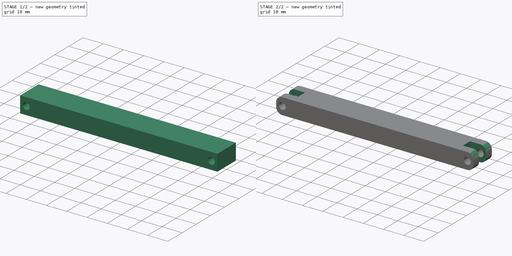
[diagram: build sequence overview — one tinted view per stage of 2, left to right]
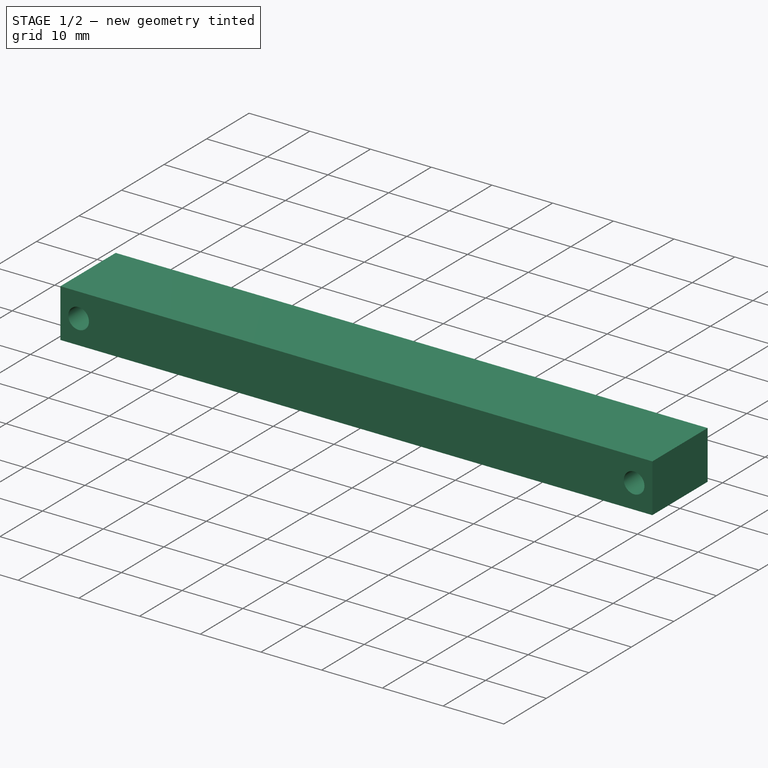
[diagram: stage 1 of 2 — iso view after this stage's code; geometry added in this stage tinted green]
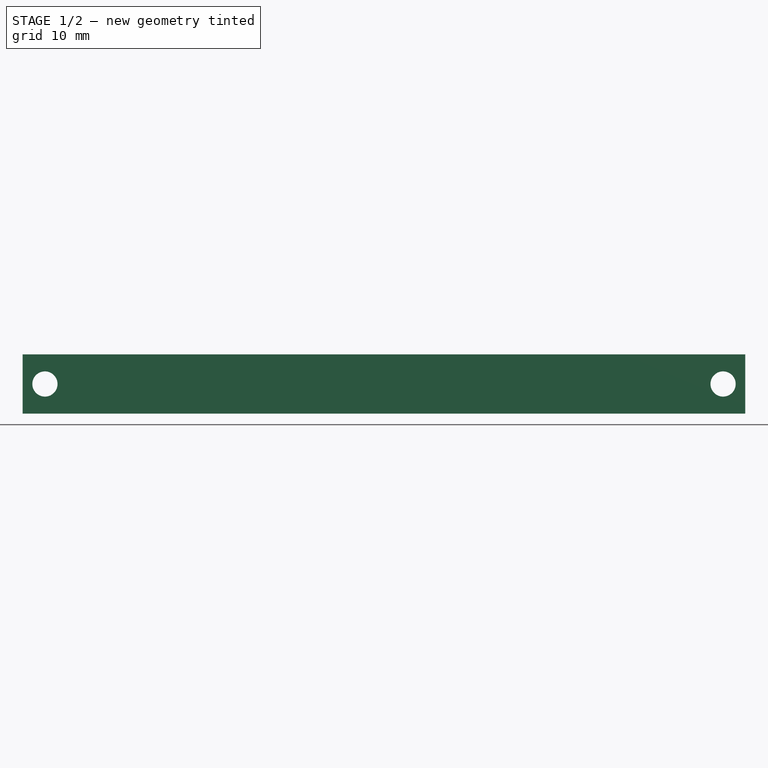
[diagram: stage 1 of 2 — front view after this stage's code; geometry added in this stage tinted green]
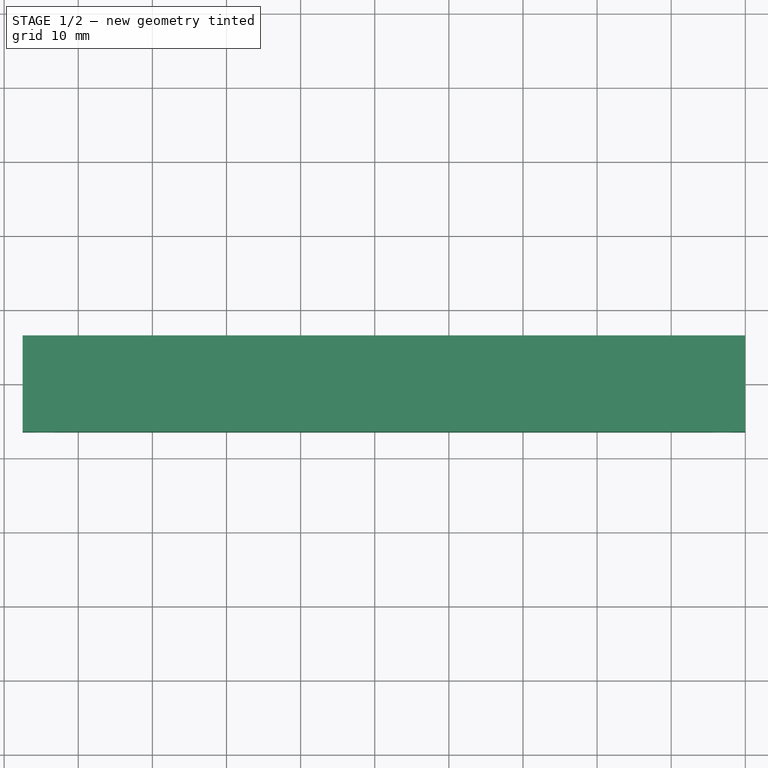
[diagram: stage 1 of 2 — top view after this stage's code; geometry added in this stage tinted green]
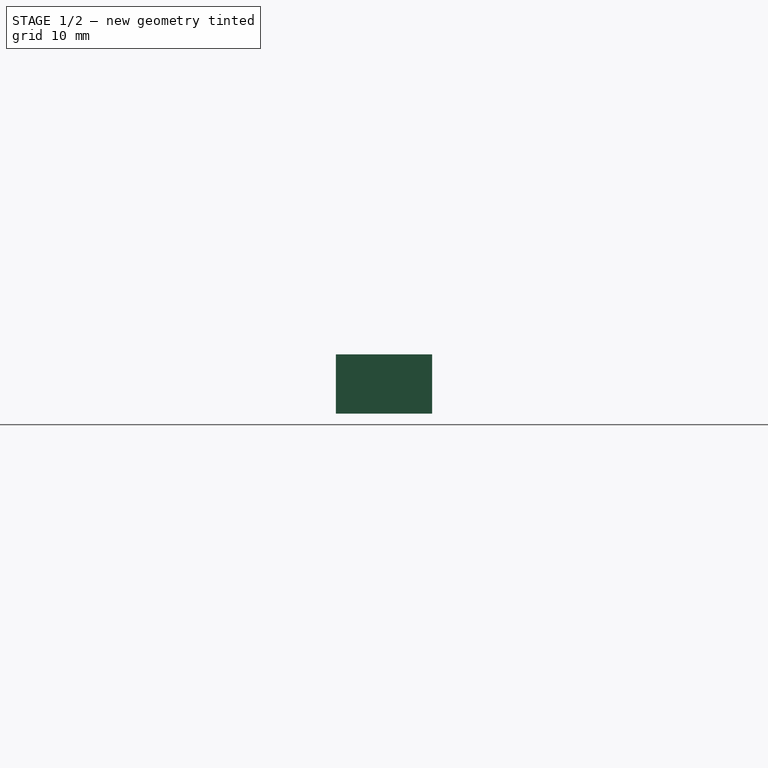
[diagram: stage 1 of 2 — right view after this stage's code; geometry added in this stage tinted green]
FCSTD DOCUMENT  (FreeCAD 0.21R33694 (Git))
Label: calfLinkageRod
License: All rights reserved
LicenseURL: http://en.wikipedia.org/wiki/All_rights_reserved
objects: Sketcher::SketchObject×3, PartDesign::Pocket×2, PartDesign::Pad×1, PartDesign::Fillet×1, PartDesign::Body×1
note: 12 computed .brp shape members not serialized (recipe doc carries the construction recipe); baked Part::Feature solids carry a one-line shape summary decoded from their .brp

FEATURE [Sketcher::SketchObject] Sketch
  FullyConstrained = false
  MapMode = 5
  Support = -> [XY_Plane]
  sketch-geometry (4):
    g0: LineSegment StartX=-47.5 StartY=-6.5 StartZ=0 EndX=50 EndY=-6.5 EndZ=0
    g1: LineSegment StartX=50 StartY=6.5 StartZ=0 EndX=-47.5 EndY=6.5 EndZ=0
    g2: LineSegment StartX=50 StartY=6.5 StartZ=0 EndX=50 EndY=-6.5 EndZ=0
    g3: LineSegment StartX=-47.5 StartY=6.5 StartZ=0 EndX=-47.5 EndY=-6.5 EndZ=0
  constraints (11):
    c: Horizontal(g0)
    c: Horizontal(g1)
    c: Coincident(g2,g1)
    c: Coincident(g2,g0)
    c: Vertical(g2)
    c: Coincident(g3,g1)
    c: Coincident(g3,g0)
    c: Vertical(g3)
    c: DistanceY(g2,g2) = 13
    c: DistanceX(g-1,g0) = 50
    c: DistanceX(g0,g-1) = 47.5
FEATURE [PartDesign::Pad] Pad
  Direction = (0,0,1)
  Length = 8
  Length2 = 10
  Profile = -> Sketch
  ReferenceAxis = -> Sketch [N_Axis]
  Type = 0
FEATURE [Sketcher::SketchObject] Sketch001
  FullyConstrained = true
  MapMode = 5
  Placement = pos=(0,-6.5,0) rot=(1,0,0;1.5708rad)
  Support = -> [Pad]
  sketch-geometry (2):
    g0: Circle CenterX=-44.5 CenterY=4 CenterZ=0 NormalX=0 NormalY=0 NormalZ=1 AngleXU=0 Radius=1.7
    g1: Circle CenterX=47 CenterY=4 CenterZ=0 NormalX=0 NormalY=0 NormalZ=1 AngleXU=0 Radius=1.7
  constraints (6):
    c: Radius(g0) = 1.7
    c: Radius(g1) = 1.7
    c: DistanceY(g1,g0) = 0
    c: DistanceY(g-1,g0) = 4
    c: DistanceX(g0,g-1) = 44.5
    c: DistanceX(g-1,g1) = 47
FEATURE [PartDesign::Pocket] Pocket
  BaseFeature = -> Pad
  Direction = (0,1,-2e-16)
  Length = 20
  Length2 = 5
  Profile = -> Sketch001
  ReferenceAxis = -> Sketch001 [N_Axis]
  Type = 0
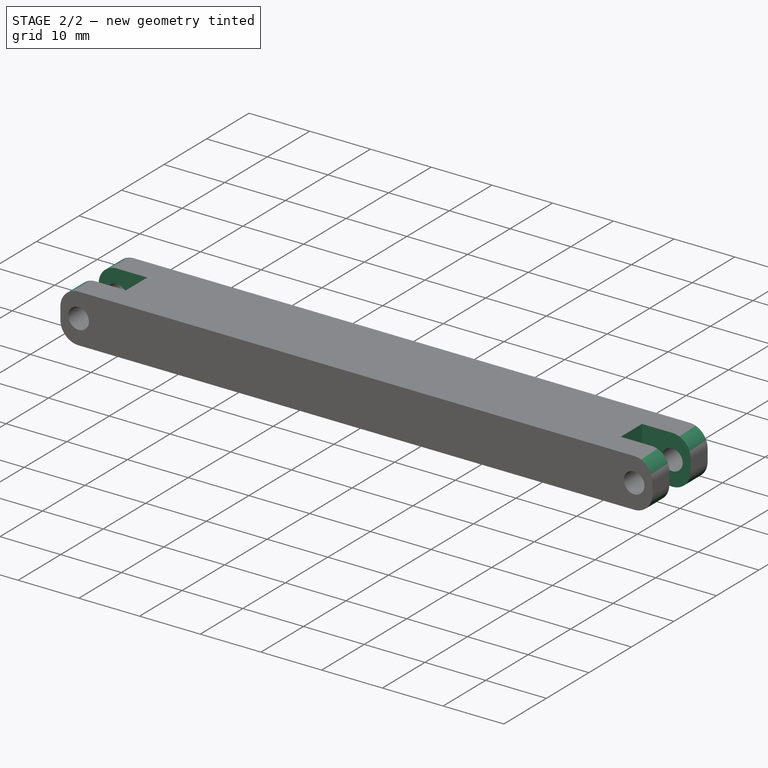
[diagram: stage 2 of 2 — iso view after this stage's code; geometry added in this stage tinted green]
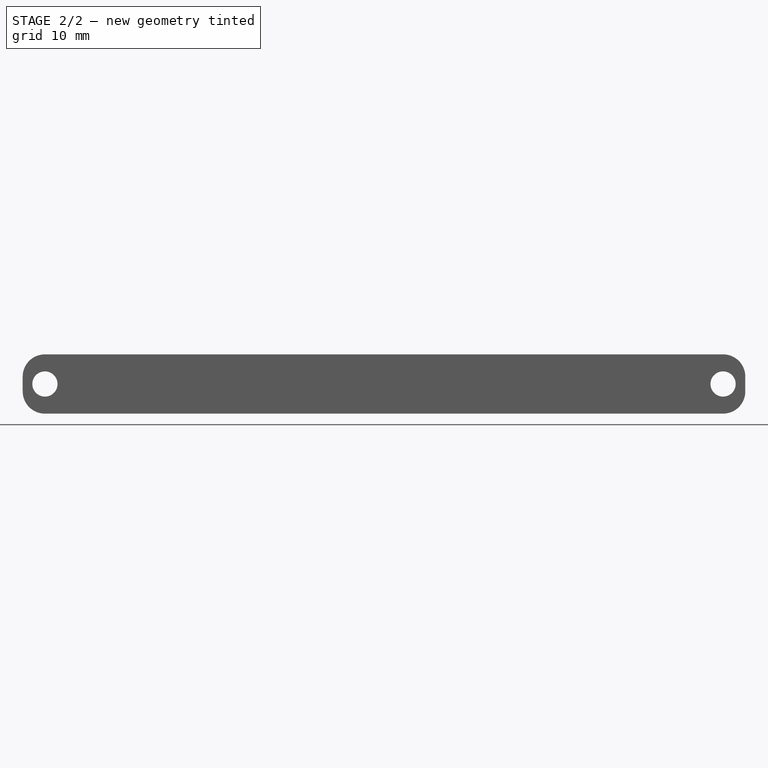
[diagram: stage 2 of 2 — front view after this stage's code; geometry added in this stage tinted green]
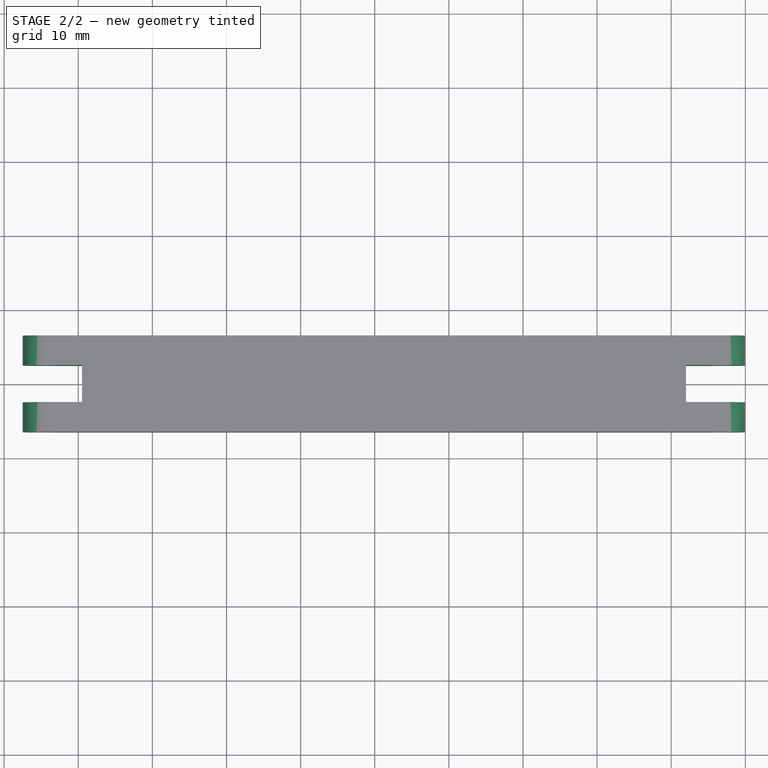
[diagram: stage 2 of 2 — top view after this stage's code; geometry added in this stage tinted green]
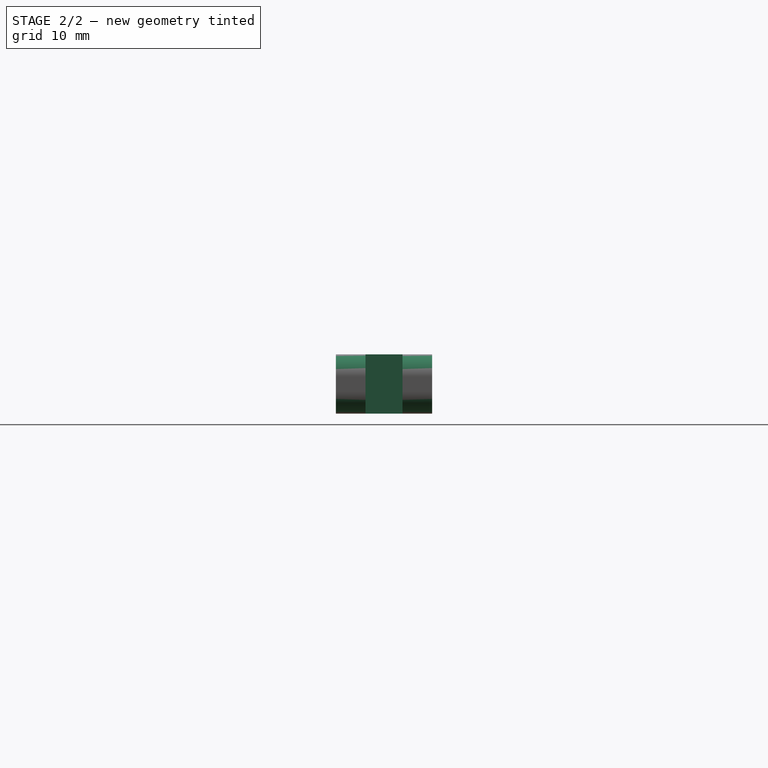
[diagram: stage 2 of 2 — right view after this stage's code; geometry added in this stage tinted green]
FEATURE [Sketcher::SketchObject] Sketch002
  FullyConstrained = true
  MapMode = 5
  Placement = pos=(0,0,8) rot=(0,0,1;0rad)
  Support = -> [Pocket]
  sketch-geometry (8):
    g0: LineSegment StartX=-47.5 StartY=2.5 StartZ=0 EndX=-39.5 EndY=2.5 EndZ=0
    g1: LineSegment StartX=-39.5 StartY=2.5 StartZ=0 EndX=-39.5 EndY=-2.5 EndZ=0
    g2: LineSegment StartX=-39.5 StartY=-2.5 StartZ=0 EndX=-47.5 EndY=-2.5 EndZ=0
    g3: LineSegment StartX=-47.5 StartY=-2.5 StartZ=0 EndX=-47.5 EndY=2.5 EndZ=0
    g4: LineSegment StartX=42 StartY=2.5 StartZ=0 EndX=42 EndY=-2.5 EndZ=0
    g5: LineSegment StartX=42 StartY=-2.5 StartZ=0 EndX=50 EndY=-2.5 EndZ=0
    g6: LineSegment StartX=50 StartY=-2.5 StartZ=0 EndX=50 EndY=2.5 EndZ=0
    g7: LineSegment StartX=50 StartY=2.5 StartZ=0 EndX=42 EndY=2.5 EndZ=0
  constraints (24):
    c: Horizontal(g0)
    c: Coincident(g1,g0)
    c: Coincident(g2,g1)
    c: Horizontal(g2)
    c: Coincident(g3,g2)
    c: Coincident(g3,g0)
    c: Vertical(g3)
    c: Vertical(g4)
    c: Coincident(g5,g4)
    c: Horizontal(g5)
    c: Coincident(g6,g5)
    c: Coincident(g7,g6)
    c: Coincident(g7,g4)
    c: Horizontal(g7)
    c: Vertical(g1)
    c: Vertical(g6)
    c: DistanceY(g0,g4) = 0
    c: DistanceY(g1,g4) = 0
    c: DistanceY(g-1,g0) = 2.5
    c: DistanceY(g2,g0) = 5
    c: DistanceX(g0,g-1) = 47.5
    c: DistanceX(g-1,g6) = 50
    c: DistanceX(g0,g0) = 8
    c: DistanceX(g4,g6) = 8
FEATURE [PartDesign::Pocket] Pocket001
  BaseFeature = -> Pocket
  Direction = (0,0,-1)
  Length = 20
  Length2 = 5
  Profile = -> Sketch002
  ReferenceAxis = -> Sketch002 [N_Axis]
  Type = 0
FEATURE [PartDesign::Fillet] Fillet
  Base = -> Pocket001 [Edge25,Edge29,Edge19,Edge15,Edge8,Edge7,Edge13,Edge23]
  BaseFeature = -> Pocket001
  Radius = 3
  SupportTransform = false
  UseAllEdges = false
FEATURE [PartDesign::Body] Body
  Group = -> [Sketch,Pad,Sketch001,Pocket,Sketch002,Pocket001,Fillet]
  Origin = -> Origin
  Tip = -> Fillet
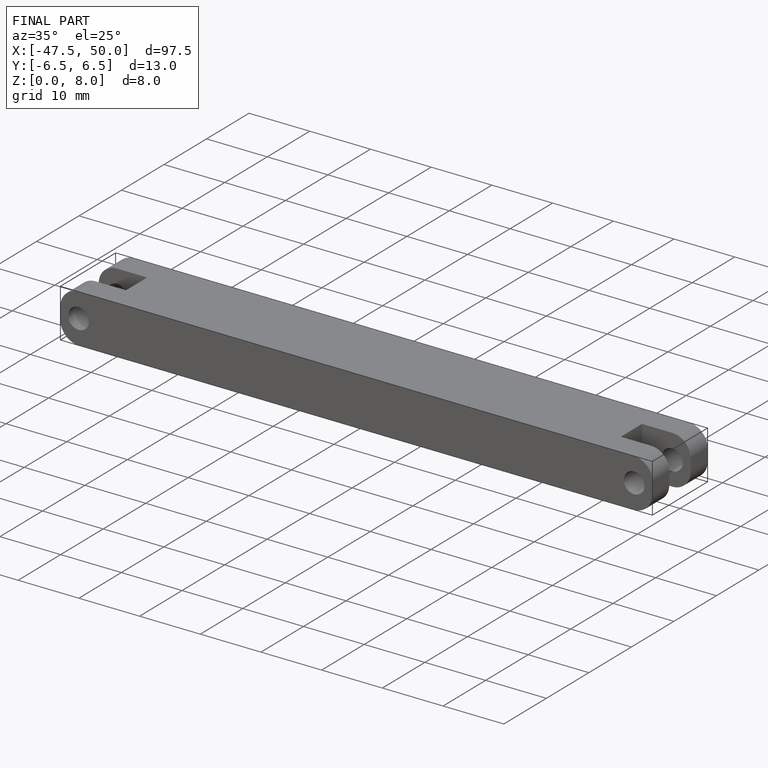
[diagram: finished part — iso view with bounding-box wireframe]
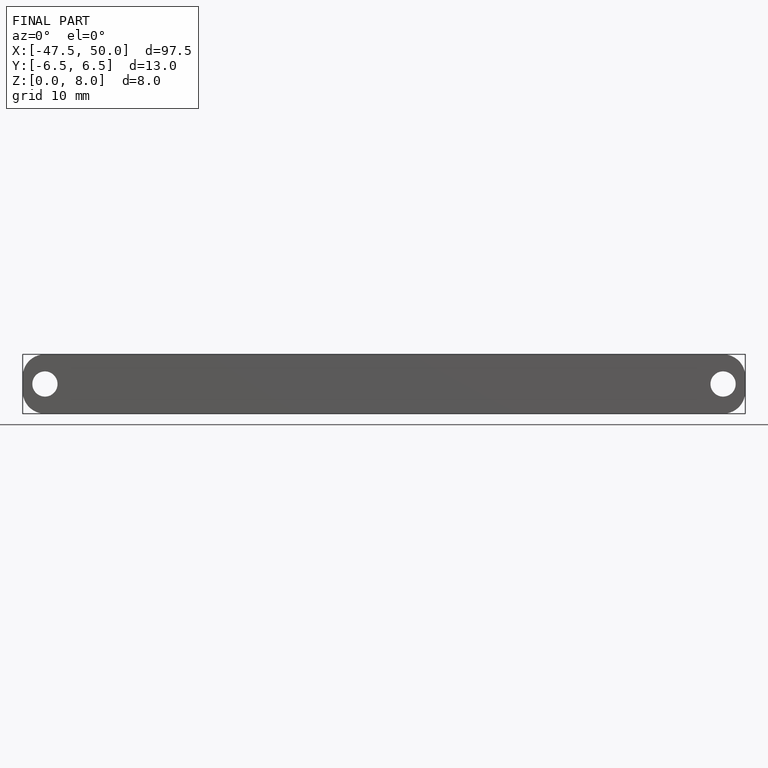
[diagram: finished part — front view with bounding-box wireframe]
